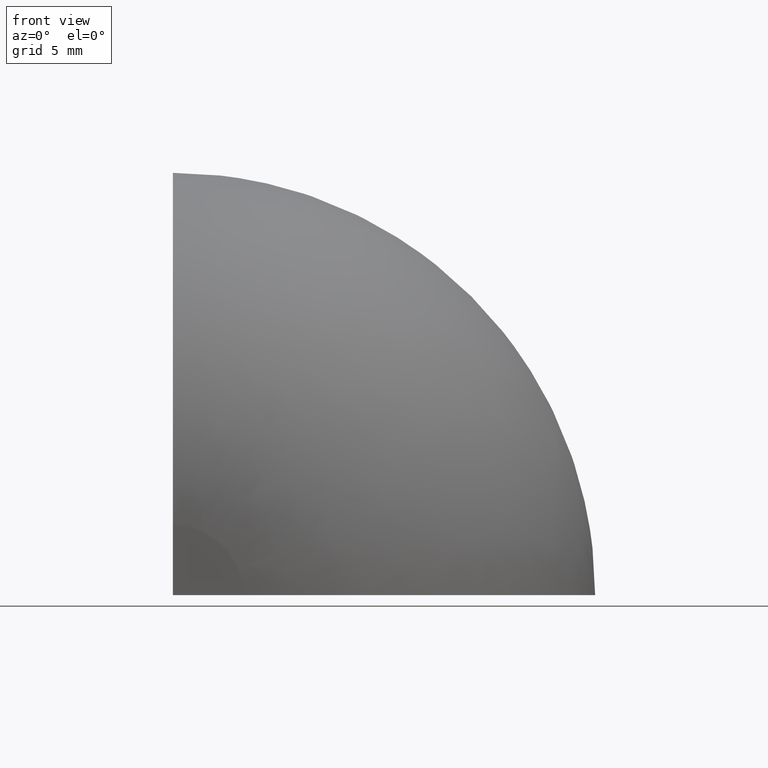
[diagram: clean part render]
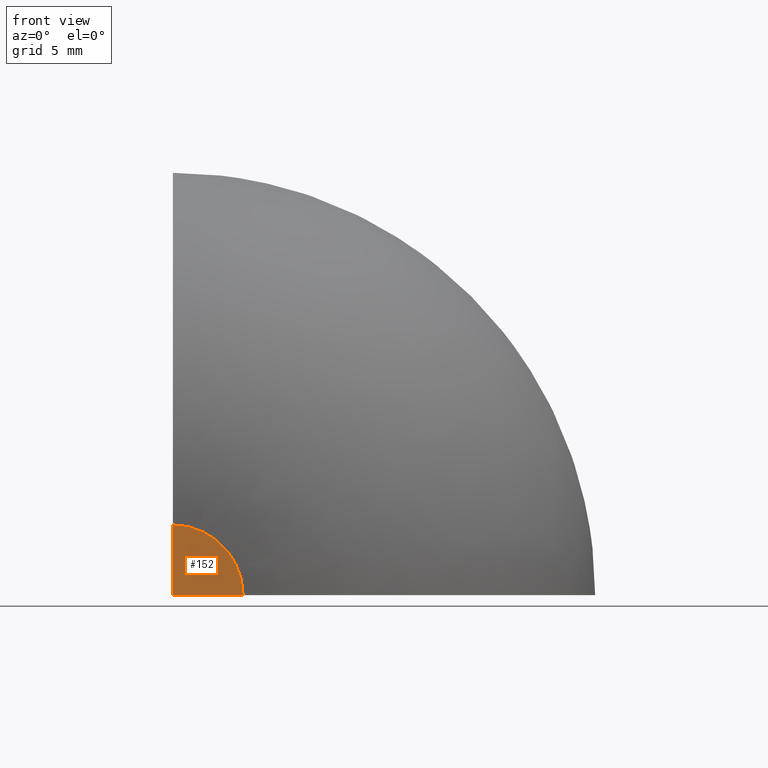
[diagram: same view with one face highlighted and labeled with its STEP entity id]
A machine part, front view. The second image highlights one B-rep face of the part: STEP entity #152.
In plain terms, the highlighted conical surface has half-angle 89.958 deg.
Its self-contained STEP definition (entity closure, byte-faithful):
#18=LINE('',#252,#29);
#19=LINE('',#253,#30);
#29=VECTOR('',#191,4.98962349888907);
#30=VECTOR('',#192,4.98962349888907);
#40=CONICAL_SURFACE('',#166,4.98962214811873,89.9578405913785);
#45=FACE_OUTER_BOUND('',#54,.T.);
#54=EDGE_LOOP('',(#111,#112,#113));
#65=CIRCLE('',#165,4.98962214811873);
#73=VERTEX_POINT('',#243);
#75=VERTEX_POINT('',#247);
#76=VERTEX_POINT('',#251);
#89=EDGE_CURVE('',#73,#75,#65,.T.);
#90=EDGE_CURVE('',#73,#76,#18,.T.);
#91=EDGE_CURVE('',#76,#75,#19,.T.);
#111=ORIENTED_EDGE('',*,*,#90,.F.);
#112=ORIENTED_EDGE('',*,*,#89,.T.);
#113=ORIENTED_EDGE('',*,*,#91,.F.);
#152=ADVANCED_FACE('',(#45),#40,.F.);
#165=AXIS2_PLACEMENT_3D('',#249,#187,#188);
#166=AXIS2_PLACEMENT_3D('',#250,#189,#190);
#187=DIRECTION('center_axis',(-6.29343229637442E-16,-1.,-1.5193689603784E-15));
#188=DIRECTION('ref_axis',(1.,-8.90025730740955E-16,2.22506432685239E-16));
#189=DIRECTION('center_axis',(0.,-1.,0.));
#190=DIRECTION('ref_axis',(1.,0.,0.));
#191=DIRECTION('',(-0.999999729284115,0.000735820424844899,0.));
#192=DIRECTION('',(6.12323233808005E-17,-0.000735820424844899,0.999999729284115));
#243=CARTESIAN_POINT('',(4.98962214811873,-29.9999978312975,0.));
#247=CARTESIAN_POINT('',(3.05526239632417E-16,-29.9999978312975,4.98962214811873));
#249=CARTESIAN_POINT('Origin',(0.,-29.9999978312975,-1.11022302462516E-15));
#250=CARTESIAN_POINT('Origin',(0.,-29.9999978312975,0.));
#251=CARTESIAN_POINT('',(0.,-29.9963263644147,0.));
#252=CARTESIAN_POINT('',(4.98962214811873,-29.9999978312975,0.));
#253=CARTESIAN_POINT('',(3.05526239632417E-16,-29.9999978312975,4.98962214811873));